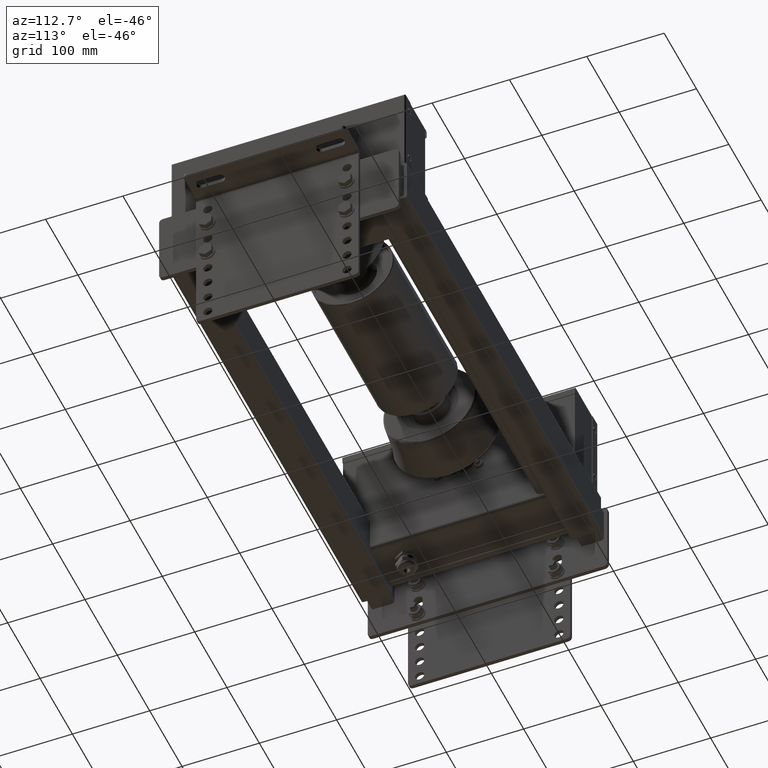
[diagram: clean part render]
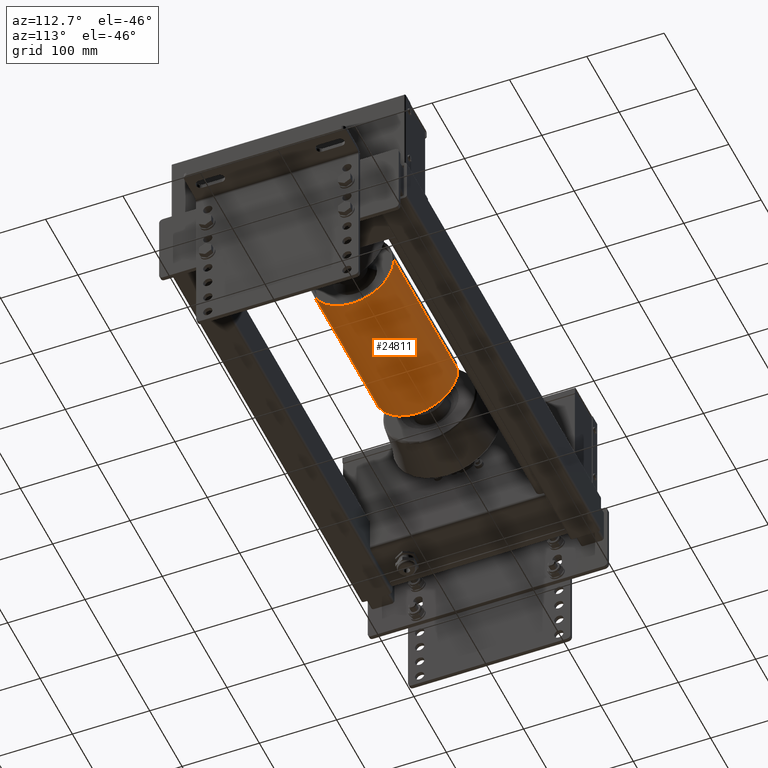
[diagram: same view with one face highlighted and labeled with its STEP entity id]
A machine part, auxiliary view. The second image highlights one B-rep face of the part: STEP entity #24811.
In plain terms, the highlighted cylindrical surface (partial cylindrical patch) has radius 54 mm, axis along (1, 0, -0).
Its self-contained STEP definition (entity closure, byte-faithful):
#24716=CARTESIAN_POINT('',(-33.500000000000000,0.0,-54.000000000000028));
#24717=VERTEX_POINT('',#24716);
#24743=CARTESIAN_POINT('',(-33.500000000000000,-53.999999999999972,-6.613093E-015));
#24744=VERTEX_POINT('',#24743);
#24752=CARTESIAN_POINT('',(-33.500000000000000,0.0,0.0));
#24753=DIRECTION('',(1.0,0.0,0.0));
#24754=DIRECTION('',(0.0,1.0,0.0));
#24755=AXIS2_PLACEMENT_3D('',#24752,#24753,#24754);
#24756=CIRCLE('',#24755,54.000000000000028);
#24757=EDGE_CURVE('',#24744,#24717,#24756,.T.);
#24762=CARTESIAN_POINT('',(-132.500000000000000,0.0,0.0));
#24763=DIRECTION('',(1.0,0.0,0.0));
#24764=DIRECTION('',(0.0,1.0,0.0));
#24765=AXIS2_PLACEMENT_3D('',#24762,#24763,#24764);
#24766=CYLINDRICAL_SURFACE('',#24765,53.999999999999972);
#24767=CARTESIAN_POINT('',(-33.500000000000000,54.000000000000028,0.0));
#24768=VERTEX_POINT('',#24767);
#24769=CARTESIAN_POINT('',(-231.499999999999970,53.999999999999915,0.0));
#24770=VERTEX_POINT('',#24769);
#24771=CARTESIAN_POINT('',(-33.500000000000000,54.000000000000028,0.0));
#24772=DIRECTION('',(-1.0,0.0,0.0));
#24773=VECTOR('',#24772,197.999999999999970);
#24774=LINE('',#24771,#24773);
#24775=EDGE_CURVE('',#24768,#24770,#24774,.T.);
#24776=ORIENTED_EDGE('',*,*,#24775,.F.);
#24777=CARTESIAN_POINT('',(-33.500000000000000,0.0,0.0));
#24778=DIRECTION('',(1.0,0.0,0.0));
#24779=DIRECTION('',(0.0,1.0,0.0));
#24780=AXIS2_PLACEMENT_3D('',#24777,#24778,#24779);
#24781=CIRCLE('',#24780,54.000000000000028);
#24782=EDGE_CURVE('',#24717,#24768,#24781,.T.);
#24783=ORIENTED_EDGE('',*,*,#24782,.F.);
#24784=ORIENTED_EDGE('',*,*,#24757,.F.);
#24785=CARTESIAN_POINT('',(-231.499999999999970,-53.999999999999972,-6.613093E-015));
#24786=VERTEX_POINT('',#24785);
#24787=CARTESIAN_POINT('',(-33.500000000000000,-53.999999999999972,-6.613093E-015));
#24788=DIRECTION('',(-1.0,0.0,0.0));
#24789=VECTOR('',#24788,197.999999999999970);
#24790=LINE('',#24787,#24789);
#24791=EDGE_CURVE('',#24744,#24786,#24790,.T.);
#24792=ORIENTED_EDGE('',*,*,#24791,.T.);
#24793=CARTESIAN_POINT('',(-231.499999999999970,0.0,-53.999999999999915));
#24794=VERTEX_POINT('',#24793);
#24795=CARTESIAN_POINT('',(-231.499999999999970,0.0,0.0));
#24796=DIRECTION('',(1.0,0.0,0.0));
#24797=DIRECTION('',(0.0,1.0,0.0));
#24798=AXIS2_PLACEMENT_3D('',#24795,#24796,#24797);
#24799=CIRCLE('',#24798,53.999999999999915);
#24800=EDGE_CURVE('',#24786,#24794,#24799,.T.);
#24801=ORIENTED_EDGE('',*,*,#24800,.T.);
#24802=CARTESIAN_POINT('',(-231.499999999999970,0.0,0.0));
#24803=DIRECTION('',(1.0,0.0,0.0));
#24804=DIRECTION('',(0.0,1.0,0.0));
#24805=AXIS2_PLACEMENT_3D('',#24802,#24803,#24804);
#24806=CIRCLE('',#24805,53.999999999999915);
#24807=EDGE_CURVE('',#24794,#24770,#24806,.T.);
#24808=ORIENTED_EDGE('',*,*,#24807,.T.);
#24809=EDGE_LOOP('',(#24776,#24783,#24784,#24792,#24801,#24808));
#24810=FACE_OUTER_BOUND('',#24809,.T.);
#24811=ADVANCED_FACE('',(#24810),#24766,.T.);